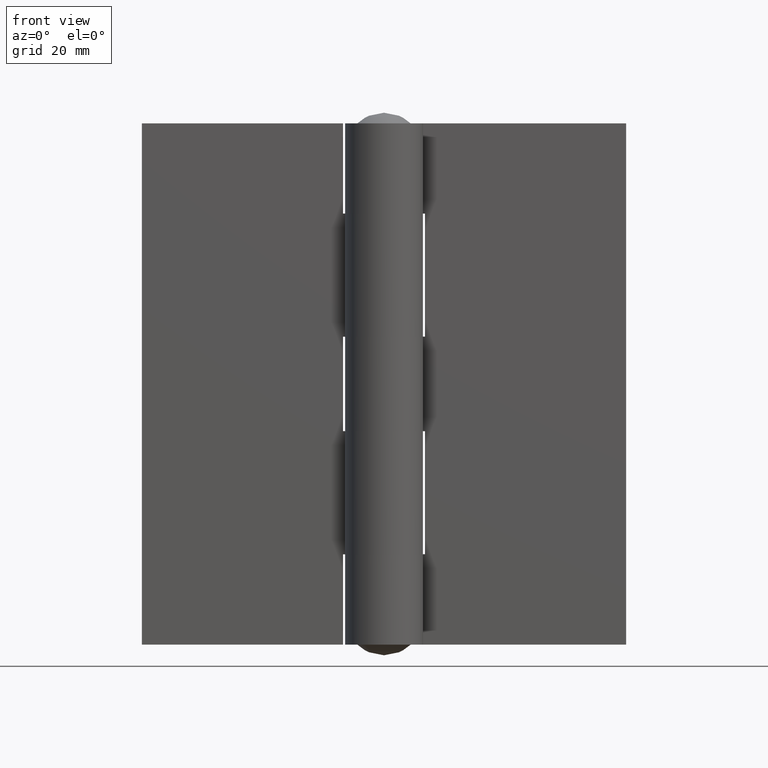
[diagram: clean part render]
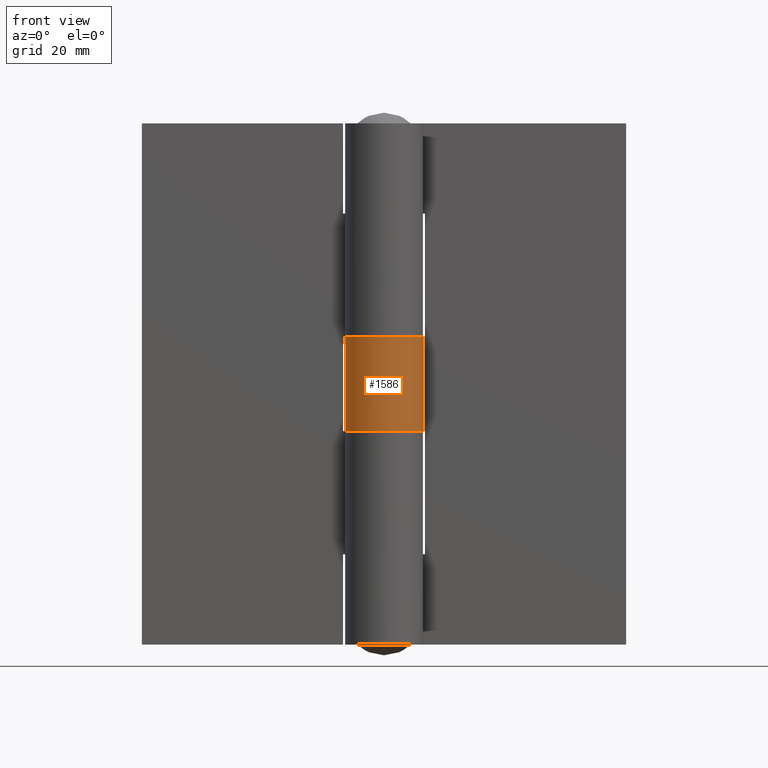
[diagram: same view with one face highlighted and labeled with its STEP entity id]
A machine part, front view. The second image highlights one B-rep face of the part: STEP entity #1586.
In plain terms, the highlighted face is a freeform B-spline surface patch.
Its self-contained STEP definition (entity closure, byte-faithful):
#766=CARTESIAN_POINT('',(7.781227409605759,5.450000000000000,52.0));
#767=VERTEX_POINT('',#766);
#768=CARTESIAN_POINT('',(0.0,9.500000000000000,52.0));
#769=VERTEX_POINT('',#768);
#770=CARTESIAN_POINT('',(7.781227409605761,5.450000000000001,52.0));
#771=CARTESIAN_POINT('',(12.058559473616100,-0.656952935130794,51.999999999999993));
#772=CARTESIAN_POINT('',(7.143096249900881,-6.263080389445113,52.0));
#773=CARTESIAN_POINT('',(2.227633026185663,-11.869207843759433,51.999999999999993));
#774=CARTESIAN_POINT('',(-4.386057455164039,-8.426891479068656,52.0));
#775=CARTESIAN_POINT('',(-10.999747936513728,-4.984575114377889,51.999999999999993));
#776=CARTESIAN_POINT('',(-9.227823932302576,2.257712442811048,52.0));
#777=CARTESIAN_POINT('',(-7.455899928091419,9.500000000000000,51.999999999999993));
#778=CARTESIAN_POINT('',(0.0,9.500000000000000,52.0));
#786=(BOUNDED_CURVE()B_SPLINE_CURVE(2,(#770,#771,#772,#773,#774,#775,#776,#777,#778),.UNSPECIFIED.,.F.,.U.)B_SPLINE_CURVE_WITH_KNOTS((3,2,2,2,3),(0.0,0.250000000000000,0.500000000000000,0.750000000000000,1.0),.UNSPECIFIED.)CURVE()GEOMETRIC_REPRESENTATION_ITEM()RATIONAL_B_SPLINE_CURVE((1.0,0.786655560378407,1.0,0.786655560378407,1.0,0.786655560378407,1.0,0.786655560378407,1.0))REPRESENTATION_ITEM(''));
#787=EDGE_CURVE('',#767,#769,#786,.T.);
#942=CARTESIAN_POINT('',(0.0,9.500000000000000,75.0));
#943=VERTEX_POINT('',#942);
#944=CARTESIAN_POINT('',(7.781227409605759,5.450000000000000,75.0));
#945=VERTEX_POINT('',#944);
#946=CARTESIAN_POINT('',(0.0,9.500000000000000,75.0));
#947=CARTESIAN_POINT('',(-7.455899928091415,9.500000000000000,75.0));
#948=CARTESIAN_POINT('',(-9.227823932302576,2.257712442811053,75.0));
#949=CARTESIAN_POINT('',(-10.999747936513732,-4.984575114377887,75.0));
#950=CARTESIAN_POINT('',(-4.386057455164036,-8.426891479068658,75.0));
#951=CARTESIAN_POINT('',(2.227633026185662,-11.869207843759431,75.0));
#952=CARTESIAN_POINT('',(7.143096249900879,-6.263080389445118,75.0));
#953=CARTESIAN_POINT('',(12.058559473616100,-0.656952935130801,75.0));
#954=CARTESIAN_POINT('',(7.781227409605764,5.449999999999996,75.0));
#962=(BOUNDED_CURVE()B_SPLINE_CURVE(2,(#946,#947,#948,#949,#950,#951,#952,#953,#954),.UNSPECIFIED.,.F.,.U.)B_SPLINE_CURVE_WITH_KNOTS((3,2,2,2,3),(0.0,0.250000000000000,0.500000000000000,0.750000000000000,1.0),.UNSPECIFIED.)CURVE()GEOMETRIC_REPRESENTATION_ITEM()RATIONAL_B_SPLINE_CURVE((1.0,0.786655560378407,1.0,0.786655560378407,1.0,0.786655560378407,1.0,0.786655560378407,1.0))REPRESENTATION_ITEM(''));
#963=EDGE_CURVE('',#943,#945,#962,.T.);
#1281=CARTESIAN_POINT('',(7.781227409605759,5.450000000000000,75.0));
#1282=CARTESIAN_POINT('',(7.781227409605759,5.450000000000000,52.0));
#1283=QUASI_UNIFORM_CURVE('',1,(#1281,#1282),.UNSPECIFIED.,.F.,.U.);
#1284=EDGE_CURVE('',#945,#767,#1283,.T.);
#1378=CARTESIAN_POINT('',(0.0,9.500000000000000,75.0));
#1379=CARTESIAN_POINT('',(0.0,9.500000000000000,52.0));
#1380=QUASI_UNIFORM_CURVE('',1,(#1378,#1379),.UNSPECIFIED.,.F.,.U.);
#1381=EDGE_CURVE('',#943,#769,#1380,.T.);
#1558=CARTESIAN_POINT('',(0.413135412726196,9.491012545073971,75.575000000000017));
#1559=CARTESIAN_POINT('',(0.413135412726196,9.491012545073971,51.410625000000003));
#1560=CARTESIAN_POINT('',(-11.734806675380769,10.019801759555500,75.575000000000017));
#1561=CARTESIAN_POINT('',(-11.734806675380769,10.019801759555500,51.410624999999996));
#1562=CARTESIAN_POINT('',(-9.309035412703214,-1.895220220723023,75.575000000000017));
#1563=CARTESIAN_POINT('',(-9.309035412703214,-1.895220220723023,51.410625000000003));
#1564=CARTESIAN_POINT('',(-6.883264150025661,-13.810242201001548,75.575000000000017));
#1565=CARTESIAN_POINT('',(-6.883264150025661,-13.810242201001548,51.410624999999996));
#1566=CARTESIAN_POINT('',(4.090983573764996,-8.574022008321702,75.575000000000017));
#1567=CARTESIAN_POINT('',(4.090983573764996,-8.574022008321702,51.410625000000003));
#1568=CARTESIAN_POINT('',(15.065231297555655,-3.337801815641859,75.575000000000017));
#1569=CARTESIAN_POINT('',(15.065231297555655,-3.337801815641859,51.410624999999996));
#1570=CARTESIAN_POINT('',(7.329638410638553,6.043707535055932,75.575000000000017));
#1571=CARTESIAN_POINT('',(7.329638410638553,6.043707535055932,51.410625000000003));
#1579=(BOUNDED_SURFACE()B_SPLINE_SURFACE(1,2,((#1558,#1560,#1562,#1564,#1566,#1568,#1570),(#1559,#1561,#1563,#1565,#1567,#1569,#1571)),.UNSPECIFIED.,.F.,.F.,.U.)B_SPLINE_SURFACE_WITH_KNOTS((2,2),(3,2,2,3),(0.0,24.164375000000021),(0.0,18.533838365502731,37.067676731005463,55.601515096508180),.UNSPECIFIED.)GEOMETRIC_REPRESENTATION_ITEM()RATIONAL_B_SPLINE_SURFACE(((1.0,0.615661475325658,1.0,0.615661475325658,1.0,0.615661475325658,1.0),(1.0,0.615661475325658,1.0,0.615661475325658,1.0,0.615661475325658,1.0)))REPRESENTATION_ITEM('')SURFACE());
#1580=ORIENTED_EDGE('',*,*,#787,.F.);
#1581=ORIENTED_EDGE('',*,*,#1284,.F.);
#1582=ORIENTED_EDGE('',*,*,#963,.F.);
#1583=ORIENTED_EDGE('',*,*,#1381,.T.);
#1584=EDGE_LOOP('',(#1580,#1581,#1582,#1583));
#1585=FACE_OUTER_BOUND('',#1584,.T.);
#1586=ADVANCED_FACE('',(#1585),#1579,.T.);